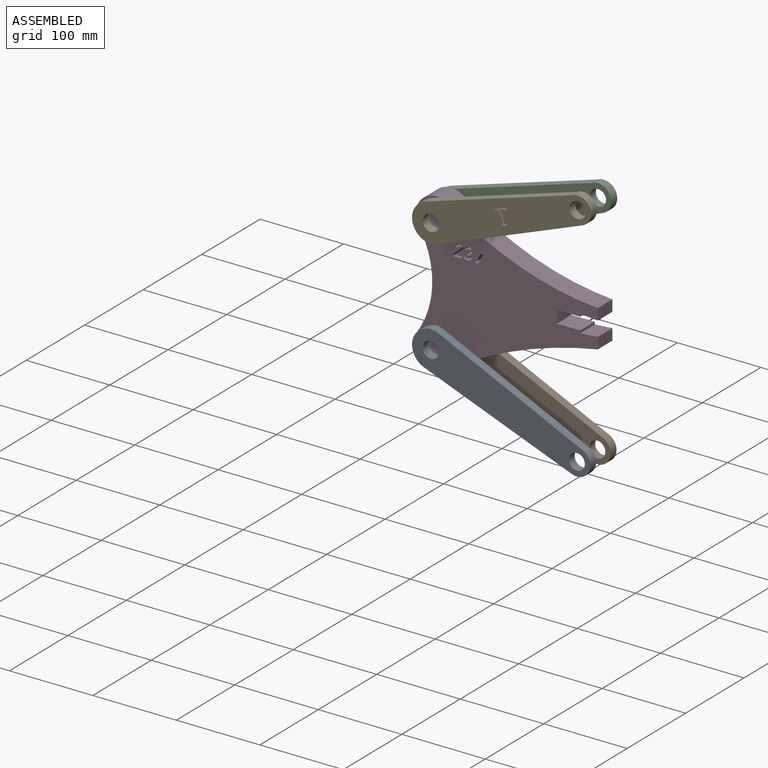
[diagram: assembled view]
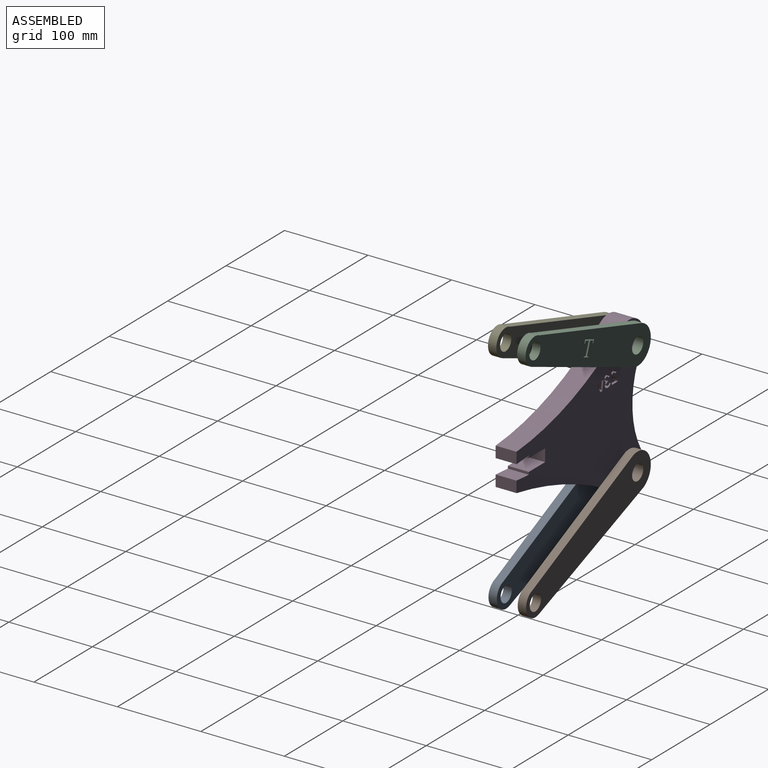
[diagram: assembled view, second angle]
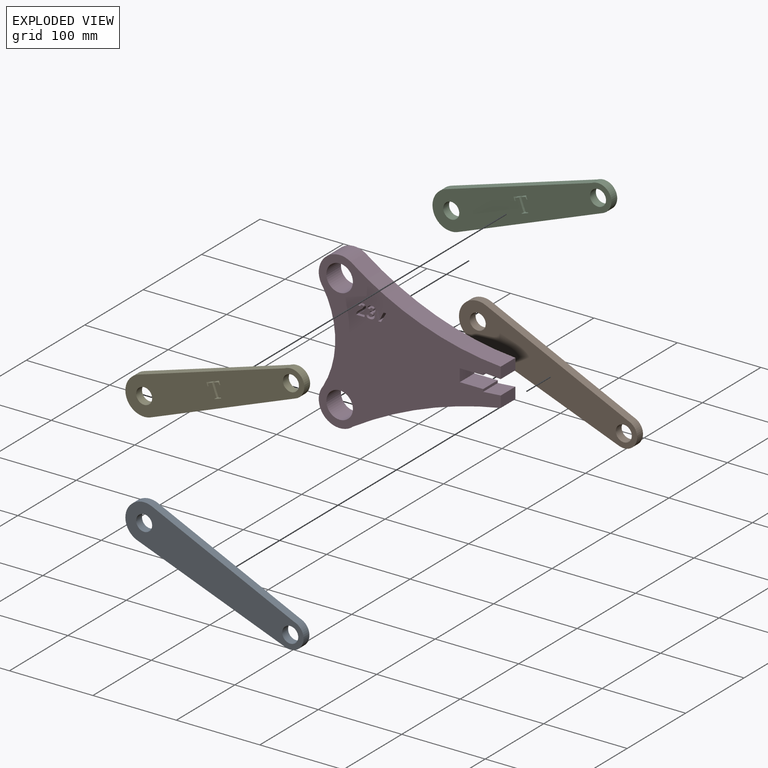
[diagram: exploded view]
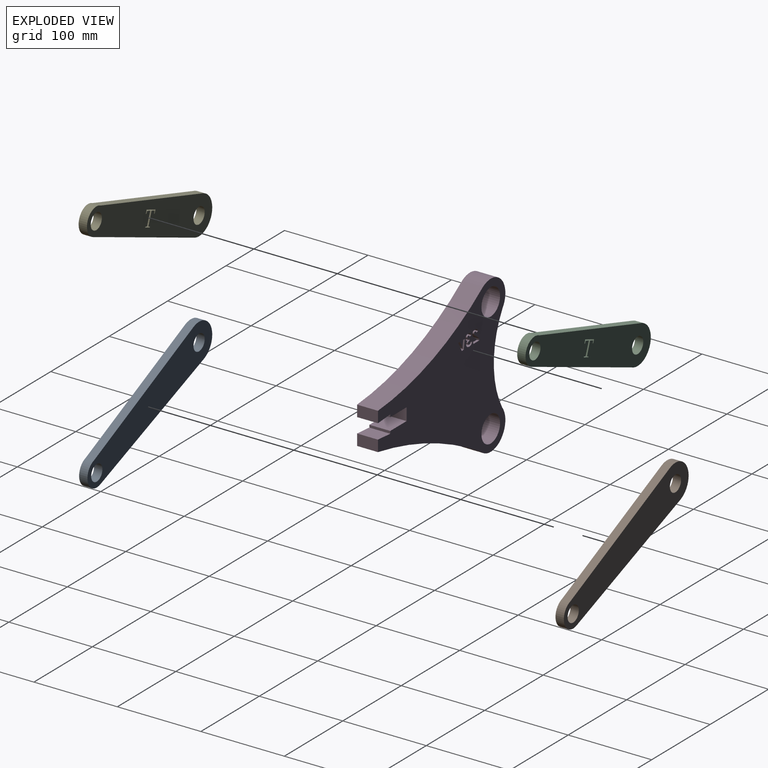
[diagram: exploded view, second angle]
ASSEMBLY  parts=5 mates=4
PART A: 8 faces, bbox 213.5x10x112.8 mm
  f0: cylinder r=16mm len=31.31mm, axis (0,1,0), area 514.1mm2, adj f1,f5,f6,f7
  f1: plane 170.16x79.34mm, normal (0.42,0,0.91), area 1877.4mm2, adj f0,f2,f6,f7
  f2: cylinder r=22.5mm len=43.02mm, axis (0,1,0), area 709.9mm2, adj f1,f5,f6,f7
  f3: cylinder r=9.57mm len=19.15mm, axis (0,1,0), area 601.6mm2, adj f6,f7
  f4: cylinder r=9.57mm len=19.15mm, axis (0,1,0), area 601.6mm2, adj f6,f7
  f5: plane 178.49x68.67mm, normal (-0.36,0,-0.93), area 1912.4mm2, adj f0,f2,f6,f7
  f6: plane 213.5x112.75mm, normal (0,-1,0), area 7926.3mm2, adj f0,f1,f2,f3,f4,f5
  f7: plane 213.5x112.75mm, normal (0,1,0), area 7926.3mm2, adj f0,f1,f2,f3,f4,f5
PART B: same geometry as A
PART C: 27 faces, bbox 214.3x10x99.4 mm
  f0: plane 214.33x99.4mm, normal (0,-1,0), area 7682.6mm2, adj f2,f3,f4,f5,f6,f7,f8,f9
  f1: plane 214.33x99.4mm, normal (0,1,0), area 7682.6mm2, adj f2,f3,f4,f5,f6,f7,f8,f9
  f2: plane 174.73x67.39mm, normal (0.36,0,-0.93), area 1872.7mm2, adj f0,f1,f3,f6
  f3: cylinder r=16mm len=30.95mm, axis (0,1,0), area 522.8mm2, adj f0,f1,f2,f4
  f4: plane 174.88x53.5mm, normal (-0.29,0,0.96), area 1828.8mm2, adj f0,f1,f3,f6
  f5: cylinder r=9.57mm len=19.15mm, axis (0,1,0), area 601.6mm2, adj f0,f1
  f6: cylinder r=22.5mm len=44.02mm, axis (0,1,0), area 709.2mm2, adj f0,f1,f2,f4
  f7: cylinder r=9.57mm len=19.15mm, axis (0,1,0), area 601.6mm2, adj f0,f1
  f8: plane 10x0.68mm, normal (0.94,0,0.34), area 7.2mm2, adj f0,f1,f9,f26
  f9: plane 10x7.89mm, normal (-0.34,0,0.94), area 84mm2, adj f0,f1,f8,f10
  f10: plane 10x0.68mm, normal (-0.94,0,-0.34), area 7.2mm2, adj f0,f1,f9,f11
  f11: plane 10x2.84mm, normal (0.22,0,-0.98), area 29.1mm2, adj f0,f1,f10,f12
  f12: plane 14.95x10mm, normal (-0.94,0,-0.34), area 159.1mm2, adj f0,f1,f11,f13
  f13: plane 10x0.62mm, normal (-0.34,0,0.94), area 6.6mm2, adj f0,f1,f12,f14
  f14: extruded ~10x2.84mm, area 30mm2, adj f0,f1,f13,f15
  f15: extruded ~10x1.73mm, area 17.8mm2, adj f0,f1,f14,f16
  f16: plane 10x2.54mm, normal (0.89,0,0.46), area 28.6mm2, adj f0,f1,f15,f17
  f17: plane 10x0.86mm, normal (-0.34,0,0.94), area 9.2mm2, adj f0,f1,f16,f18
  f18: plane 10x4.02mm, normal (-0.94,0,-0.34), area 42.8mm2, adj f0,f1,f17,f19
  f19: plane 15.04x10mm, normal (0.34,0,-0.94), area 160mm2, adj f0,f1,f18,f20
  f20: plane 10x4.02mm, normal (0.94,0,0.34), area 42.8mm2, adj f0,f1,f19,f21
  f21: plane 10x0.85mm, normal (-0.34,0,0.94), area 9.1mm2, adj f0,f1,f20,f22
  f22: plane 10x2.79mm, normal (-0.98,0,-0.22), area 28.6mm2, adj f0,f1,f21,f23
  f23: extruded ~10x4.32mm, area 47.1mm2, adj f0,f1,f22,f24
  f24: plane 10x0.65mm, normal (-0.34,0,0.94), area 6.9mm2, adj f0,f1,f23,f25
  f25: plane 14.98x10mm, normal (0.94,0,0.34), area 159.4mm2, adj f0,f1,f24,f26
  f26: plane 10x2.59mm, normal (0.46,0,-0.89), area 29.1mm2, adj f0,f1,f8,f25
PART D: 79 faces, bbox 218x25x187.5 mm
  f0: plane 25x10.02mm, normal (0,0,1), area 250.5mm2, adj f1,f76,f77,f78
  f1: plane 25x1.98mm, normal (0.98,0,-0.19), area 50.5mm2, adj f0,f2,f77,f78
  f2: extruded ~25x1.59mm, area 49.1mm2, adj f1,f3,f77,f78
  f3: extruded ~25x1.42mm, area 49.5mm2, adj f2,f4,f77,f78
  f4: extruded ~25x2.61mm, area 81.3mm2, adj f3,f5,f77,f78
  f5: extruded ~25x2.06mm, area 65.3mm2, adj f4,f6,f77,f78
  f6: extruded ~25x1.12mm, area 35.2mm2, adj f5,f7,f77,f78
  f7: extruded ~25x1.2mm, area 31.3mm2, adj f6,f8,f77,f78
  f8: extruded ~25x1.65mm, area 63.1mm2, adj f7,f9,f77,f78
  f9: extruded ~25x1.44mm, area 38.6mm2, adj f8,f10,f77,f78
  f10: extruded ~25x1.42mm, area 41.8mm2, adj f9,f11,f77,f78
  f11: plane 25x2.71mm, normal (0.22,0,0.98), area 69.3mm2, adj f10,f12,f77,f78
  f12: extruded ~25x2.69mm, area 83.2mm2, adj f11,f13,f77,f78
  f13: extruded ~25x3.34mm, area 87.4mm2, adj f12,f14,f77,f78
  f14: extruded ~25x3.26mm, area 86.1mm2, adj f13,f15,f77,f78
  f15: extruded ~25x2.64mm, area 74.4mm2, adj f14,f16,f77,f78
  f16: extruded ~25x1.86mm, area 48.1mm2, adj f15,f17,f77,f78
  f17: extruded ~25x1.71mm, area 53.9mm2, adj f16,f18,f77,f78
  f18: extruded ~25x2.78mm, area 87.5mm2, adj f17,f19,f77,f78
  f19: extruded ~25x2.14mm, area 67mm2, adj f18,f20,f77,f78
  f20: extruded ~25x1.36mm, area 46.3mm2, adj f19,f21,f77,f78
  f21: plane 25x6.65mm, normal (0,0,-1), area 166.3mm2, adj f20,f76,f77,f78
  f22: plane 25x0.74mm, normal (0,0,-1), area 18.6mm2, adj f23,f71,f77,f78
  f23: extruded ~25x2.26mm, area 59.5mm2, adj f22,f24,f77,f78
  f24: extruded ~25x1.67mm, area 47.4mm2, adj f23,f25,f77,f78
  f25: extruded ~25x1.16mm, area 31.3mm2, adj f24,f26,f77,f78
  f26: extruded ~25x1.21mm, area 32.9mm2, adj f25,f27,f77,f78
  f27: extruded ~25x2.41mm, area 83.1mm2, adj f26,f28,f77,f78
  f28: plane 25x2.72mm, normal (0.19,0,0.98), area 69.2mm2, adj f27,f29,f77,f78
  f29: extruded ~25x5.24mm, area 173.2mm2, adj f28,f30,f77,f78
  f30: extruded ~25x3.22mm, area 85.5mm2, adj f29,f31,f77,f78
  f31: extruded ~25x2.57mm, area 73.2mm2, adj f30,f32,f77,f78
  f32: extruded ~25x2.55mm, area 70.4mm2, adj f31,f33,f77,f78
  f33: extruded ~25x2.69mm, area 74.2mm2, adj f32,f34,f77,f78
  f34: plane 25x0.04mm, normal (-0.97,0,0.22), area 1.1mm2, adj f33,f35,f77,f78
  f35: extruded ~25x2.09mm, area 59.3mm2, adj f34,f36,f77,f78
  f36: extruded ~25x2.07mm, area 56.1mm2, adj f35,f37,f77,f78
  f37: extruded ~25x2.29mm, area 60.5mm2, adj f36,f38,f77,f78
  f38: extruded ~25x1.86mm, area 62.2mm2, adj f37,f39,f77,f78
  f39: extruded ~25x2.76mm, area 70.9mm2, adj f38,f40,f77,f78
  f40: extruded ~25x3.59mm, area 94.3mm2, adj f39,f41,f77,f78
  f41: extruded ~25x2.75mm, area 80.2mm2, adj f40,f42,f77,f78
  f42: plane 25x2.87mm, normal (0.13,0,-0.99), area 72.3mm2, adj f41,f43,f77,f78
  f43: extruded ~25x1.35mm, area 38.3mm2, adj f42,f44,f77,f78
  f44: extruded ~25x1.66mm, area 43.6mm2, adj f43,f45,f77,f78
  f45: extruded ~25x1.65mm, area 44.8mm2, adj f44,f46,f77,f78
  f46: extruded ~25x1.57mm, area 43.1mm2, adj f45,f47,f77,f78
  f47: extruded ~25x2.24mm, area 83.9mm2, adj f46,f48,f77,f78
  f48: plane 25x1.09mm, normal (0,0,1), area 27.3mm2, adj f47,f71,f77,f78
  f49: plane 25x11.01mm, normal (-0.87,0,0.49), area 315.9mm2, adj f50,f72,f77,f78
  f50: plane 25x3.42mm, normal (0,0,1), area 85.4mm2, adj f49,f51,f77,f78
  f51: plane 25x11.01mm, normal (0.99,0,0.16), area 278.8mm2, adj f50,f52,f77,f78
  f52: plane 25x2.94mm, normal (0,0,-1), area 73.5mm2, adj f51,f53,f77,f78
  f53: plane 25x6.15mm, normal (-0.99,0,-0.12), area 154.9mm2, adj f52,f54,f77,f78
  f54: extruded ~25x1.4mm, area 35.3mm2, adj f53,f55,f77,f78
  f55: extruded ~25x1.33mm, area 33.4mm2, adj f54,f56,f77,f78
  f56: extruded ~25x2.71mm, area 74.4mm2, adj f55,f57,f77,f78
  f57: plane 25x6.19mm, normal (0.89,0,-0.46), area 174.2mm2, adj f56,f72,f77,f78
  f58: plane 25x3mm, normal (1,0,0), area 75mm2, adj f59,f75,f77,f78
  f59: plane 25x21mm, normal (-0.08,0,-1), area 526.6mm2, adj f58,f60,f77,f78
  f60: plane 25x13.5mm, normal (1,0,0), area 337.5mm2, adj f59,f61,f77,f78
  f61: cylinder r=350.87mm len=179.86mm, axis (0,1,0), area 4847.4mm2, adj f60,f62,f77,f78
  f62: cylinder r=25mm len=40.05mm, axis (0,1,0), area 1731.4mm2, adj f61,f63,f77,f78
  f63: cylinder r=105.54mm len=106.87mm, axis (0,1,0), area 2801.6mm2, adj f62,f64,f77,f78
  f64: cylinder r=25mm len=41.32mm, axis (0,1,0), area 1846.8mm2, adj f63,f65,f77,f78
  f65: cylinder r=503.12mm len=176.68mm, axis (0,1,0), area 4755.4mm2, adj f64,f66,f77,f78
  f66: plane 25x13.5mm, normal (1,0,0), area 337.5mm2, adj f65,f67,f77,f78
  f67: plane 25x21mm, normal (-0.08,0,1), area 526.6mm2, adj f66,f68,f77,f78
  f68: plane 25x3mm, normal (1,0,0), area 75mm2, adj f67,f69,f77,f78
  f69: plane 28x25mm, normal (0,0,1), area 700mm2, adj f68,f70,f77,f78
  f70: plane 25x14.98mm, normal (1,0,0), area 374.6mm2, adj f69,f75,f77,f78
  f71: plane 25x2.31mm, normal (0.98,0,-0.19), area 58.9mm2, adj f22,f48,f77,f78
  f72: plane 25x3.07mm, normal (0,0,-1), area 76.8mm2, adj f49,f57,f77,f78
  f73: cylinder r=15.93mm len=31.85mm, axis (0,1,0), area 2501.5mm2, adj f77,f78
  f74: cylinder r=15.93mm len=31.85mm, axis (0,1,0), area 2501.5mm2, adj f77,f78
  f75: plane 28x25mm, normal (0,0,-1), area 700mm2, adj f58,f70,f77,f78
  f76: plane 25x2.35mm, normal (-0.98,0,0.19), area 59.8mm2, adj f0,f21,f77,f78
  f77: plane 218x187.5mm, normal (0,-1,0), area 19837.8mm2, adj f0,f1,f2,f3,f4,f5,f6,f7
  f78: plane 218x187.5mm, normal (0,1,0), area 19837.8mm2, adj f0,f1,f2,f3,f4,f5,f6,f7
PART E: same geometry as C
PLACE A t=(-100.92,-111.14,-103.52)mm
PLACE B t=(-100.92,-76.14,-103.52)mm
PLACE C t=(-137.31,-76.14,89.16)mm
PLACE D t=(-82.34,-86.14,-4.17)mm
PLACE E t=(-137.31,-111.14,89.16)mm
MATE revolute D.f62 <-> C.f5  axis (0,1,0) through (-270.51,-86.14,104.09)mm
MATE revolute D.f64 <-> A.f2  axis (0,-1,0) through (-270.51,-111.14,-33.41)mm
MATE revolute B.f2 <-> D.f64  axis (0,-1,0) through (-270.51,-86.14,-33.41)mm
MATE revolute D.f62 <-> E.f5  axis (0,-1,0) through (-270.51,-111.14,104.09)mm
